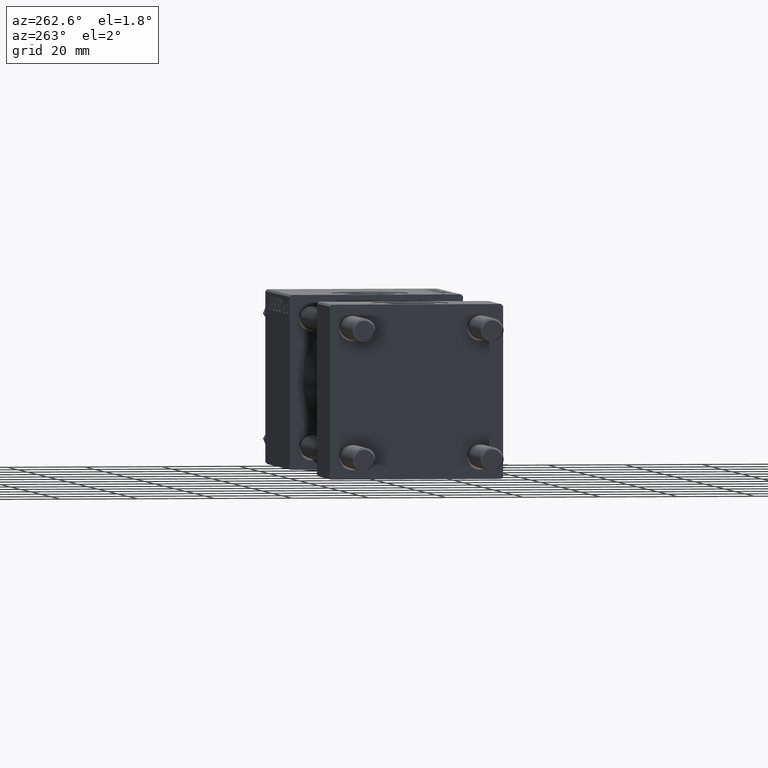
[diagram: clean part render]
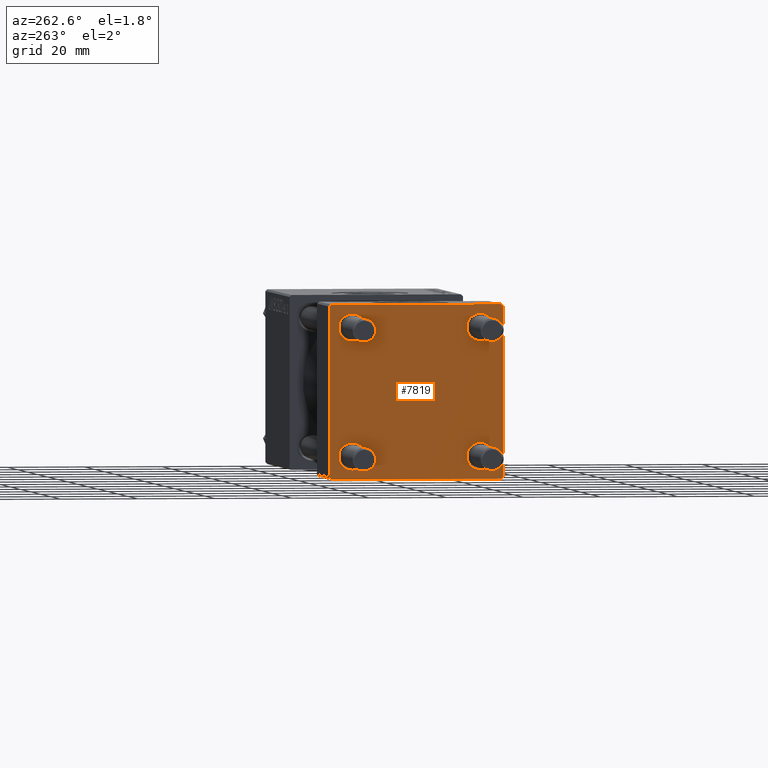
[diagram: same view with one face highlighted and labeled with its STEP entity id]
A machine part, auxiliary view. The second image highlights one B-rep face of the part: STEP entity #7819.
In plain terms, the highlighted planar face has unit normal (-1, 0, 0).
Its self-contained STEP definition (entity closure, byte-faithful):
#392 = EDGE_LOOP ( 'NONE', ( #16649, #21021 ) ) ;
#1209 = VERTEX_POINT ( 'NONE', #31666 ) ;
#1357 = VECTOR ( 'NONE', #40304, 1000.000000000000000 ) ;
#1621 = VERTEX_POINT ( 'NONE', #37145 ) ;
#1723 = LINE ( 'NONE', #29815, #34050 ) ;
#1859 = ORIENTED_EDGE ( 'NONE', *, *, #49779, .T. ) ;
#1921 = ORIENTED_EDGE ( 'NONE', *, *, #4303, .T. ) ;
#2105 = CARTESIAN_POINT ( 'NONE',  ( 0.000000000000000000, 16.59999999999999787, -16.60000000000000497 ) ) ;
#2184 = CARTESIAN_POINT ( 'NONE',  ( 0.000000000000000000, 22.50000000000000000, 22.50000000000000355 ) ) ;
#2695 = DIRECTION ( 'NONE',  ( 1.000000000000000000, -0.000000000000000000, 0.000000000000000000 ) ) ;
#2795 = AXIS2_PLACEMENT_3D ( 'NONE', #21928, #2695, #28787 ) ;
#3228 = CARTESIAN_POINT ( 'NONE',  ( 0.000000000000000000, -16.59999999999999076, 20.10000000000000853 ) ) ;
#3548 = VERTEX_POINT ( 'NONE', #14554 ) ;
#3729 = CARTESIAN_POINT ( 'NONE',  ( 0.000000000000000000, 16.59999999999999787, -16.60000000000000497 ) ) ;
#3978 = DIRECTION ( 'NONE',  ( 0.000000000000000000, 0.000000000000000000, -1.000000000000000000 ) ) ;
#4024 = VERTEX_POINT ( 'NONE', #3228 ) ;
#4303 = EDGE_CURVE ( 'NONE', #4024, #27713, #21998, .T. ) ;
#4655 = ORIENTED_EDGE ( 'NONE', *, *, #17227, .T. ) ;
#4908 = CARTESIAN_POINT ( 'NONE',  ( 0.000000000000000000, 22.50000000000000000, -21.99999999999996803 ) ) ;
#4962 = VECTOR ( 'NONE', #39656, 1000.000000000000000 ) ;
#5872 = CARTESIAN_POINT ( 'NONE',  ( 0.000000000000000000, -22.25000000000014566, -22.24999999999984013 ) ) ;
#5983 = DIRECTION ( 'NONE',  ( 0.000000000000000000, -1.000000000000000000, -7.709882115452476934E-17 ) ) ;
#6592 = CIRCLE ( 'NONE', #25175, 3.499999999999996003 ) ;
#6646 = LINE ( 'NONE', #10948, #22271 ) ;
#7142 = DIRECTION ( 'NONE',  ( 0.000000000000000000, 0.000000000000000000, -1.000000000000000000 ) ) ;
#7166 = LINE ( 'NONE', #2184, #43966 ) ;
#7380 = DIRECTION ( 'NONE',  ( 1.000000000000000000, -0.000000000000000000, 0.000000000000000000 ) ) ;
#7819 = ADVANCED_FACE ( 'NONE', ( #42505, #49590, #15159, #42748, #11118 ), #7824, .T. ) ;
#7824 = PLANE ( 'NONE',  #41978 ) ;
#7959 = CARTESIAN_POINT ( 'NONE',  ( 0.000000000000000000, 16.59999999999999787, 20.10000000000000142 ) ) ;
#9290 = VERTEX_POINT ( 'NONE', #7959 ) ;
#9645 = CARTESIAN_POINT ( 'NONE',  ( 0.000000000000000000, 21.99999999999999289, 22.50000000000000355 ) ) ;
#10948 = CARTESIAN_POINT ( 'NONE',  ( 0.000000000000000000, 22.50000000000000000, 22.50000000000000355 ) ) ;
#11118 = FACE_OUTER_BOUND ( 'NONE', #47119, .T. ) ;
#11300 = EDGE_CURVE ( 'NONE', #21524, #24286, #32355, .T. ) ;
#11407 = AXIS2_PLACEMENT_3D ( 'NONE', #2105, #17540, #28939 ) ;
#11761 = EDGE_LOOP ( 'NONE', ( #1859, #21289 ) ) ;
#12909 = EDGE_CURVE ( 'NONE', #1621, #1209, #33222, .T. ) ;
#13219 = EDGE_CURVE ( 'NONE', #21829, #42891, #1723, .T. ) ;
#13283 = EDGE_CURVE ( 'NONE', #1209, #1621, #6592, .T. ) ;
#13378 = EDGE_CURVE ( 'NONE', #42891, #27397, #32306, .T. ) ;
#14341 = DIRECTION ( 'NONE',  ( 0.000000000000000000, 0.000000000000000000, 1.000000000000000000 ) ) ;
#14554 = CARTESIAN_POINT ( 'NONE',  ( 0.000000000000000000, -22.50000000000000000, -21.99999999999997158 ) ) ;
#15159 = FACE_BOUND ( 'NONE', #20169, .T. ) ;
#15973 = CIRCLE ( 'NONE', #31338, 3.499999999999996003 ) ;
#16649 = ORIENTED_EDGE ( 'NONE', *, *, #32145, .T. ) ;
#16662 = DIRECTION ( 'NONE',  ( 1.000000000000000000, -0.000000000000000000, 0.000000000000000000 ) ) ;
#17227 = EDGE_CURVE ( 'NONE', #43387, #34863, #21710, .T. ) ;
#17540 = DIRECTION ( 'NONE',  ( 1.000000000000000000, -0.000000000000000000, 0.000000000000000000 ) ) ;
#17608 = CARTESIAN_POINT ( 'NONE',  ( 0.000000000000000000, -21.99999999999997158, -22.50000000000000711 ) ) ;
#17910 = CARTESIAN_POINT ( 'NONE',  ( 0.000000000000000000, -16.59999999999999076, -20.10000000000000497 ) ) ;
#18296 = ORIENTED_EDGE ( 'NONE', *, *, #12909, .T. ) ;
#20159 = CARTESIAN_POINT ( 'NONE',  ( 0.000000000000000000, 22.50000000000000000, -22.49999999999999645 ) ) ;
#20169 = EDGE_LOOP ( 'NONE', ( #18296, #23099 ) ) ;
#21021 = ORIENTED_EDGE ( 'NONE', *, *, #24623, .T. ) ;
#21289 = ORIENTED_EDGE ( 'NONE', *, *, #11300, .T. ) ;
#21524 = VERTEX_POINT ( 'NONE', #17910 ) ;
#21710 = LINE ( 'NONE', #48792, #27707 ) ;
#21829 = VERTEX_POINT ( 'NONE', #4908 ) ;
#21928 = CARTESIAN_POINT ( 'NONE',  ( 0.000000000000000000, 16.59999999999999787, 16.60000000000000497 ) ) ;
#21998 = CIRCLE ( 'NONE', #43826, 3.499999999999996003 ) ;
#22271 = VECTOR ( 'NONE', #7142, 1000.000000000000000 ) ;
#22427 = DIRECTION ( 'NONE',  ( 0.000000000000000000, 0.000000000000000000, 1.000000000000000000 ) ) ;
#22439 = DIRECTION ( 'NONE',  ( 0.000000000000000000, 0.000000000000000000, 1.000000000000000000 ) ) ;
#22724 = LINE ( 'NONE', #38668, #27496 ) ;
#22757 = DIRECTION ( 'NONE',  ( -1.000000000000000000, 0.000000000000000000, -0.000000000000000000 ) ) ;
#23014 = CARTESIAN_POINT ( 'NONE',  ( 0.000000000000000000, 0.000000000000000000, 0.000000000000000000 ) ) ;
#23099 = ORIENTED_EDGE ( 'NONE', *, *, #13283, .T. ) ;
#23263 = DIRECTION ( 'NONE',  ( -0.000000000000000000, 0.000000000000000000, 1.000000000000000000 ) ) ;
#24049 = CIRCLE ( 'NONE', #33720, 3.499999999999996003 ) ;
#24286 = VERTEX_POINT ( 'NONE', #36741 ) ;
#24623 = EDGE_CURVE ( 'NONE', #35367, #9290, #35935, .T. ) ;
#25175 = AXIS2_PLACEMENT_3D ( 'NONE', #3729, #26522, #41957 ) ;
#25248 = DIRECTION ( 'NONE',  ( 1.000000000000000000, -0.000000000000000000, 0.000000000000000000 ) ) ;
#25516 = VECTOR ( 'NONE', #30221, 999.9999999999998863 ) ;
#26179 = LINE ( 'NONE', #46657, #25516 ) ;
#26301 = EDGE_CURVE ( 'NONE', #34863, #21829, #6646, .T. ) ;
#26522 = DIRECTION ( 'NONE',  ( 1.000000000000000000, -0.000000000000000000, 0.000000000000000000 ) ) ;
#27397 = VERTEX_POINT ( 'NONE', #17608 ) ;
#27496 = VECTOR ( 'NONE', #3978, 1000.000000000000000 ) ;
#27707 = VECTOR ( 'NONE', #29810, 1000.000000000000114 ) ;
#27713 = VERTEX_POINT ( 'NONE', #49125 ) ;
#28266 = CARTESIAN_POINT ( 'NONE',  ( 0.000000000000000000, 22.50000000000000000, 21.99999999999999645 ) ) ;
#28787 = DIRECTION ( 'NONE',  ( 0.000000000000000000, 0.000000000000000000, 1.000000000000000000 ) ) ;
#28939 = DIRECTION ( 'NONE',  ( 0.000000000000000000, 0.000000000000000000, 1.000000000000000000 ) ) ;
#29123 = ORIENTED_EDGE ( 'NONE', *, *, #29946, .T. ) ;
#29810 = DIRECTION ( 'NONE',  ( 0.000000000000000000, 0.7071067811865474617, -0.7071067811865474617 ) ) ;
#29815 = CARTESIAN_POINT ( 'NONE',  ( 0.000000000000000000, 22.25000000000014566, -22.24999999999984013 ) ) ;
#29946 = EDGE_CURVE ( 'NONE', #27397, #3548, #41067, .T. ) ;
#30221 = DIRECTION ( 'NONE',  ( -0.000000000000000000, 0.7071067811865525687, 0.7071067811865425767 ) ) ;
#30391 = CIRCLE ( 'NONE', #43322, 3.499999999999996003 ) ;
#30776 = AXIS2_PLACEMENT_3D ( 'NONE', #41674, #37855, #22427 ) ;
#30842 = EDGE_CURVE ( 'NONE', #27713, #4024, #24049, .T. ) ;
#31054 = ORIENTED_EDGE ( 'NONE', *, *, #45699, .F. ) ;
#31338 = AXIS2_PLACEMENT_3D ( 'NONE', #37869, #34588, #22439 ) ;
#31666 = CARTESIAN_POINT ( 'NONE',  ( 0.000000000000000000, 16.59999999999999787, -20.10000000000000142 ) ) ;
#32095 = DIRECTION ( 'NONE',  ( 0.000000000000000000, 0.000000000000000000, 1.000000000000000000 ) ) ;
#32145 = EDGE_CURVE ( 'NONE', #9290, #35367, #15973, .T. ) ;
#32306 = LINE ( 'NONE', #20159, #4962 ) ;
#32355 = CIRCLE ( 'NONE', #30776, 3.499999999999996003 ) ;
#33222 = CIRCLE ( 'NONE', #11407, 3.499999999999996003 ) ;
#33302 = ORIENTED_EDGE ( 'NONE', *, *, #30842, .T. ) ;
#33505 = CARTESIAN_POINT ( 'NONE',  ( 0.000000000000000000, -22.50000000000000000, 22.00000000000000000 ) ) ;
#33609 = VERTEX_POINT ( 'NONE', #34962 ) ;
#33720 = AXIS2_PLACEMENT_3D ( 'NONE', #34209, #7380, #42314 ) ;
#34050 = VECTOR ( 'NONE', #37407, 1000.000000000000000 ) ;
#34209 = CARTESIAN_POINT ( 'NONE',  ( 0.000000000000000000, -16.59999999999999076, 16.60000000000000853 ) ) ;
#34588 = DIRECTION ( 'NONE',  ( 1.000000000000000000, -0.000000000000000000, 0.000000000000000000 ) ) ;
#34863 = VERTEX_POINT ( 'NONE', #28266 ) ;
#34962 = CARTESIAN_POINT ( 'NONE',  ( 0.000000000000000000, -21.99999999999997868, 22.50000000000000000 ) ) ;
#35367 = VERTEX_POINT ( 'NONE', #40525 ) ;
#35664 = EDGE_CURVE ( 'NONE', #41278, #3548, #22724, .T. ) ;
#35935 = CIRCLE ( 'NONE', #2795, 3.499999999999996003 ) ;
#36044 = CARTESIAN_POINT ( 'NONE',  ( 0.000000000000000000, 21.99999999999999289, -22.49999999999999645 ) ) ;
#36741 = CARTESIAN_POINT ( 'NONE',  ( 0.000000000000000000, -16.59999999999999076, -13.10000000000001030 ) ) ;
#37145 = CARTESIAN_POINT ( 'NONE',  ( 0.000000000000000000, 16.59999999999999787, -13.10000000000000675 ) ) ;
#37407 = DIRECTION ( 'NONE',  ( -0.000000000000000000, -0.7071067811865426878, -0.7071067811865524577 ) ) ;
#37855 = DIRECTION ( 'NONE',  ( 1.000000000000000000, -0.000000000000000000, 0.000000000000000000 ) ) ;
#37869 = CARTESIAN_POINT ( 'NONE',  ( 0.000000000000000000, 16.59999999999999787, 16.60000000000000497 ) ) ;
#38586 = ORIENTED_EDGE ( 'NONE', *, *, #48791, .T. ) ;
#38668 = CARTESIAN_POINT ( 'NONE',  ( 0.000000000000000000, -22.50000000000000000, 22.50000000000000000 ) ) ;
#39300 = EDGE_LOOP ( 'NONE', ( #1921, #33302 ) ) ;
#39656 = DIRECTION ( 'NONE',  ( 0.000000000000000000, -1.000000000000000000, -2.312964634635742957E-16 ) ) ;
#40304 = DIRECTION ( 'NONE',  ( 0.000000000000000000, -0.7071067811865426878, 0.7071067811865524577 ) ) ;
#40525 = CARTESIAN_POINT ( 'NONE',  ( 0.000000000000000000, 16.59999999999999787, 13.10000000000000675 ) ) ;
#41067 = LINE ( 'NONE', #5872, #1357 ) ;
#41278 = VERTEX_POINT ( 'NONE', #33505 ) ;
#41674 = CARTESIAN_POINT ( 'NONE',  ( 0.000000000000000000, -16.59999999999999076, -16.60000000000000853 ) ) ;
#41957 = DIRECTION ( 'NONE',  ( 0.000000000000000000, 0.000000000000000000, 1.000000000000000000 ) ) ;
#41978 = AXIS2_PLACEMENT_3D ( 'NONE', #23014, #22757, #23263 ) ;
#42314 = DIRECTION ( 'NONE',  ( 0.000000000000000000, 0.000000000000000000, 1.000000000000000000 ) ) ;
#42505 = FACE_BOUND ( 'NONE', #39300, .T. ) ;
#42748 = FACE_BOUND ( 'NONE', #392, .T. ) ;
#42819 = ORIENTED_EDGE ( 'NONE', *, *, #35664, .F. ) ;
#42891 = VERTEX_POINT ( 'NONE', #36044 ) ;
#43023 = ORIENTED_EDGE ( 'NONE', *, *, #13378, .T. ) ;
#43133 = ORIENTED_EDGE ( 'NONE', *, *, #13219, .T. ) ;
#43242 = CARTESIAN_POINT ( 'NONE',  ( 0.000000000000000000, -16.59999999999999076, -16.60000000000000853 ) ) ;
#43322 = AXIS2_PLACEMENT_3D ( 'NONE', #43242, #16662, #32095 ) ;
#43387 = VERTEX_POINT ( 'NONE', #9645 ) ;
#43826 = AXIS2_PLACEMENT_3D ( 'NONE', #49029, #25248, #14341 ) ;
#43966 = VECTOR ( 'NONE', #5983, 1000.000000000000000 ) ;
#45699 = EDGE_CURVE ( 'NONE', #43387, #33609, #7166, .T. ) ;
#46657 = CARTESIAN_POINT ( 'NONE',  ( -0.000000000000000000, -22.24999999999984013, 22.25000000000015277 ) ) ;
#47119 = EDGE_LOOP ( 'NONE', ( #47129, #43133, #43023, #29123, #42819, #38586, #31054, #4655 ) ) ;
#47129 = ORIENTED_EDGE ( 'NONE', *, *, #26301, .T. ) ;
#48791 = EDGE_CURVE ( 'NONE', #41278, #33609, #26179, .T. ) ;
#48792 = CARTESIAN_POINT ( 'NONE',  ( 0.000000000000000000, 22.24999999999999645, 22.24999999999999645 ) ) ;
#49029 = CARTESIAN_POINT ( 'NONE',  ( 0.000000000000000000, -16.59999999999999076, 16.60000000000000853 ) ) ;
#49125 = CARTESIAN_POINT ( 'NONE',  ( 0.000000000000000000, -16.59999999999999076, 13.10000000000001030 ) ) ;
#49590 = FACE_BOUND ( 'NONE', #11761, .T. ) ;
#49779 = EDGE_CURVE ( 'NONE', #24286, #21524, #30391, .T. ) ;